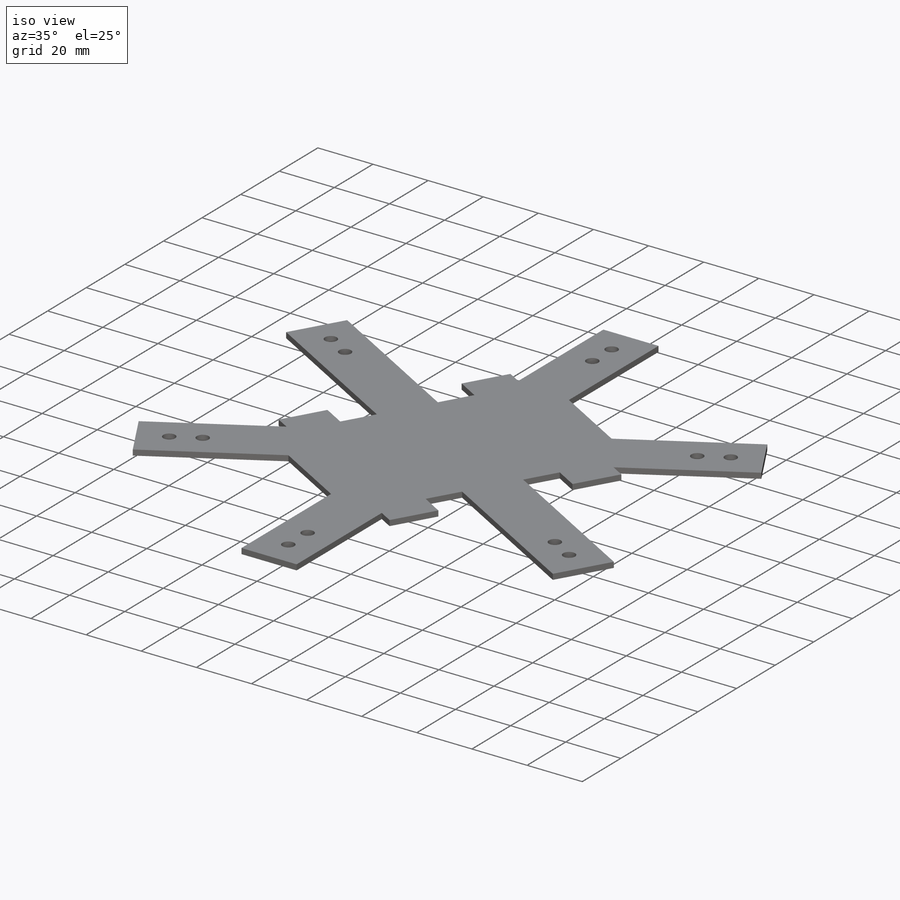
[diagram: iso view]
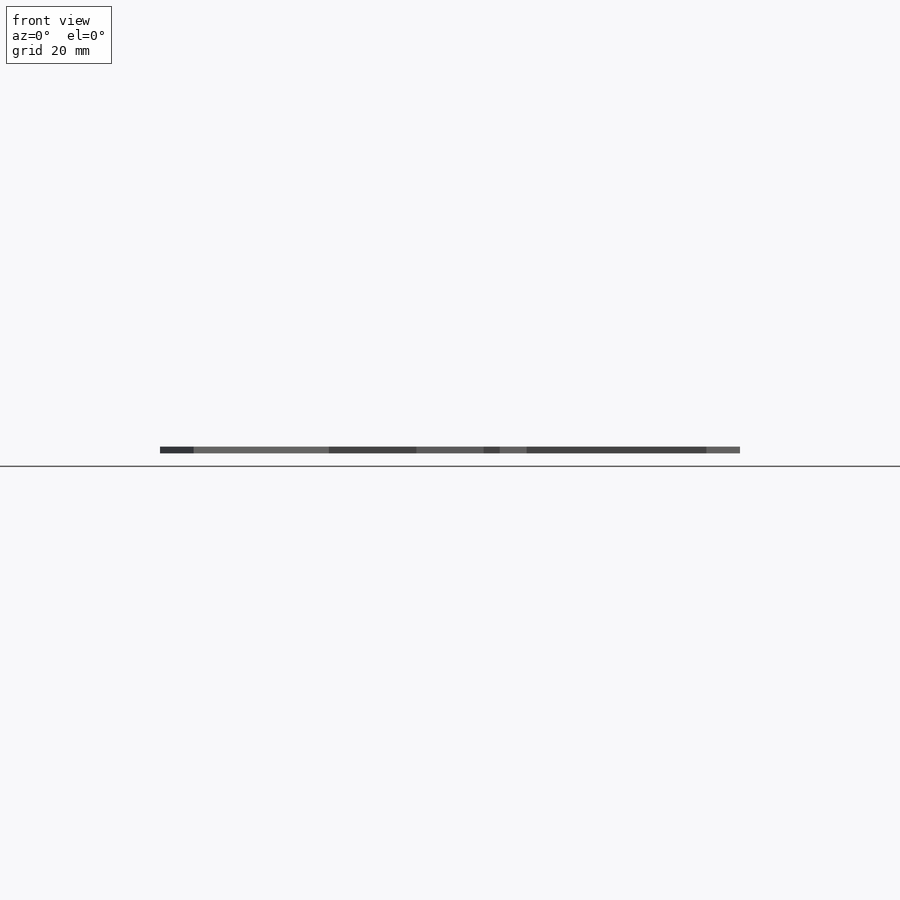
[diagram: front view]
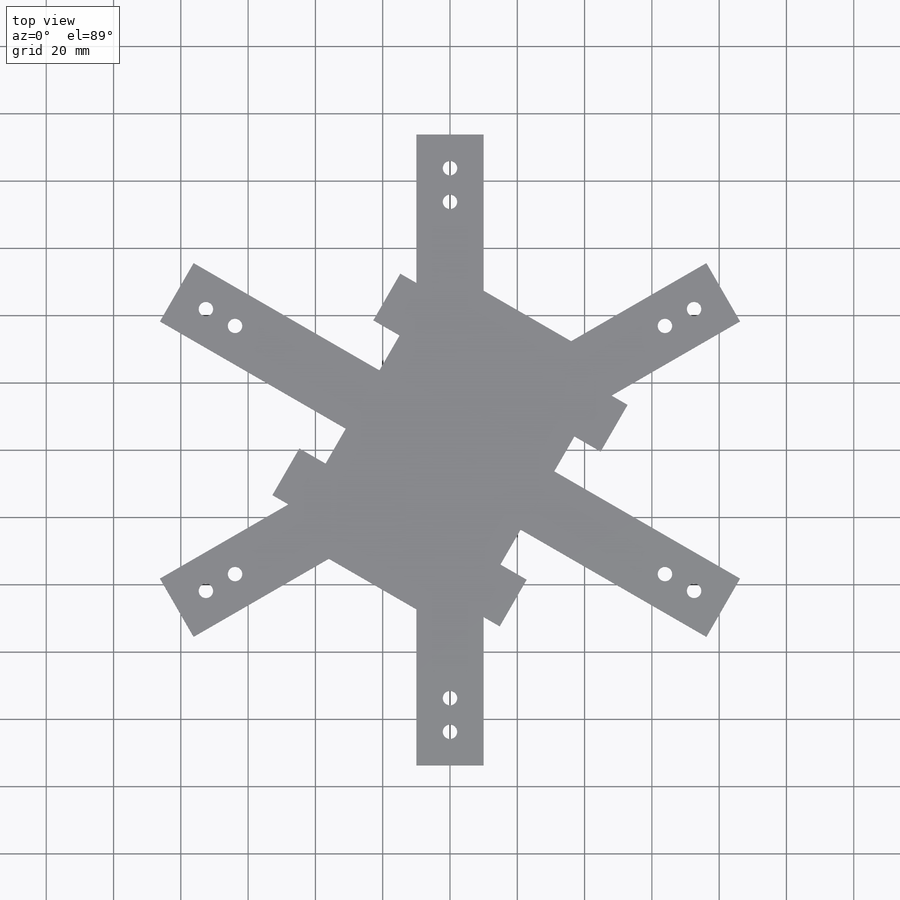
[diagram: top view]
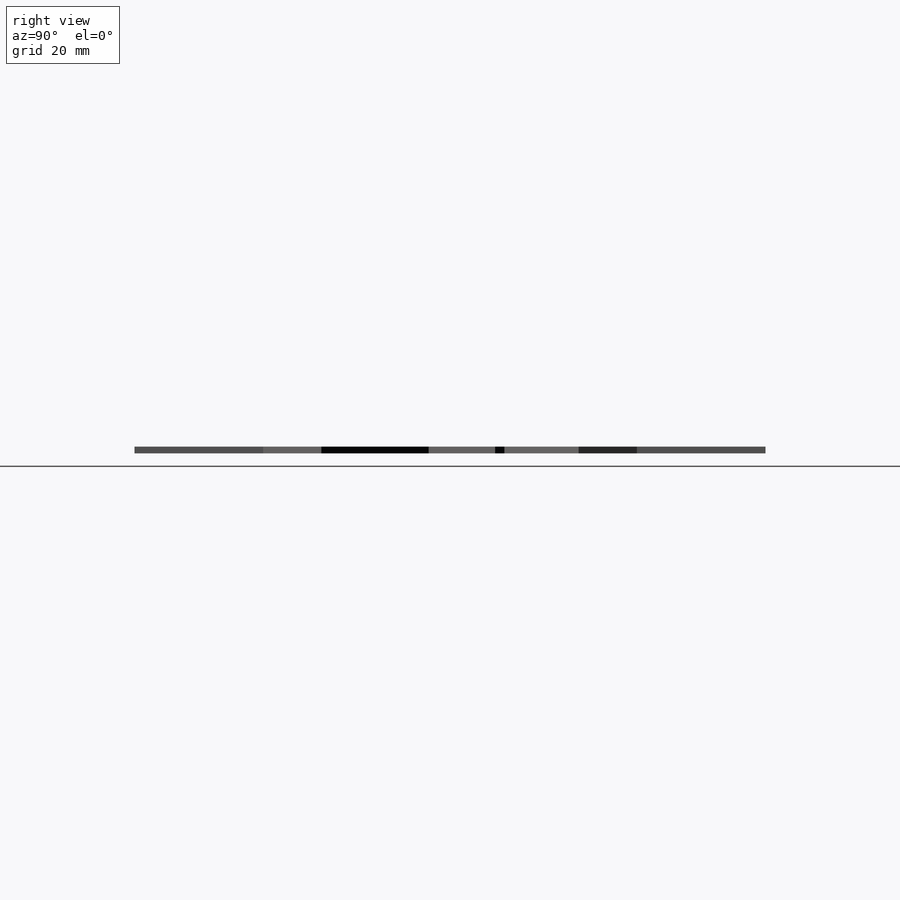
[diagram: right view]
SOLIDWORKS PART (.sldprt)
format: sldprt  version: not decoded by parser v0  size: 627,200 bytes
history: native  units: mm
features: sketch x10, extrude x5, cut_extrude x4, material x1 (+12 scaffold rows collapsed)
feature tree (32):
  scaffold x12  (default folders/planes/origin — collapsed)
  material  "Thornel Mat VMA"
  sketch  "Sketch1"  dims[D1=205.0mm D2=25.0mm D3=81.5mm D4=50.0mm D5=18.0mm D6=10.0mm D7=20.0mm]
  extrude  "Boss-Extrude2"  Depth=2mm
  sketch  "Sketch2"  dims[D3=4.3mm D4=4.3mm D1=10.0mm D2=10.0mm D5=6.0]
  cut_extrude  "Cut-Extrude1"  Depth=10mm
  sketch  "Sketch7"
  cut_extrude  "Cut-Extrude3"  Depth=30mm
  sketch  "Sketch8"  dims[c1.D1=46.0mm c1.D2=~19.443174mm c2.D2=90.0deg c2.D3=30.0mm c2.D4=30.0mm c3.D4=90.0deg]
  extrude  "Boss-Extrude4"  Depth=2mm
  sketch  "Sketch9"  dims[c1.D1=10.0mm c1.D2=10.0mm c1.D3=~12.823719mm c2.D3=90.0deg c2.D4=40.0mm c2.D2=6.0]
  extrude  "Boss-Extrude5"  Depth=2mm
  sketch  "Sketch10"  dims[c1.D1=~39.011328mm c2.D1=90.0deg c2.D2=6.0]
  cut_extrude  "Cut-Extrude4"  Depth=2mm
  sketch  "Sketch12"  dims[c1.D1=10.0mm c1.D2=~14.219574mm c2.D2=90.0deg c3.D2=10.0mm c3.D3=6.0]
  extrude  "Boss-Extrude6"  Depth=2mm
  sketch  "Sketch13"  dims[c1.D1=~93.767604mm c2.D1=30.0deg c3.D1=~93.767604mm]
  sketch  "Sketch14"  dims[c1.D1=30.0mm c1.D2=43.0mm c1.D3=~7.465985mm c2.D3=90.0deg c2.D4=8.0mm]
  extrude  "Boss-Extrude7"  Depth=2mm
  sketch  "Sketch15"  dims[D1=4.0mm]
  cut_extrude  "Cut-Extrude5"  Depth=2mm
decode coverage: 18 of 19 modeling features carry decoded parameters
note: ~ marks probable driven/reference dimensions
note: suppression state not decoded; provenance and decode notes live in map.json
